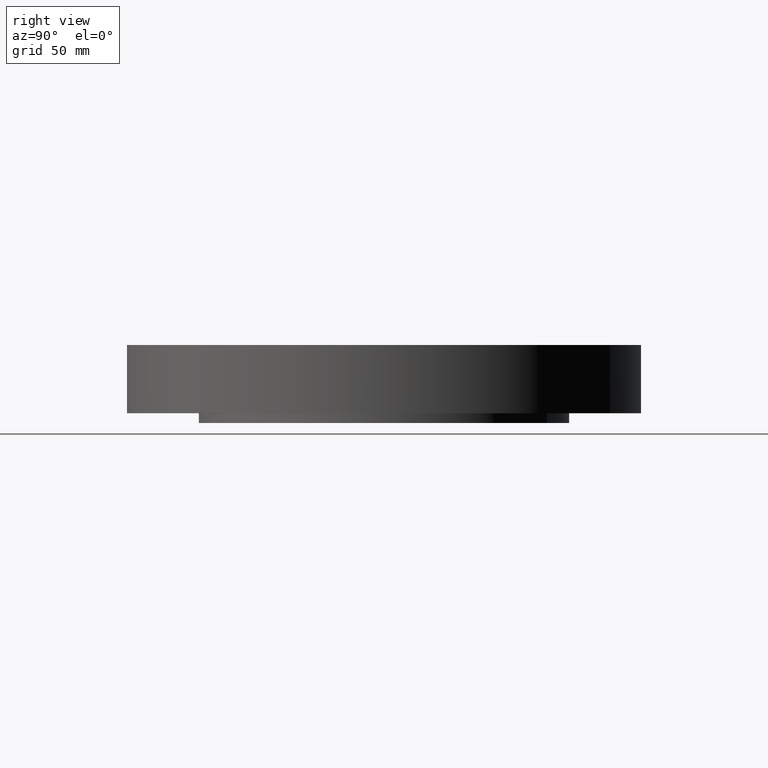
[diagram: clean part render]
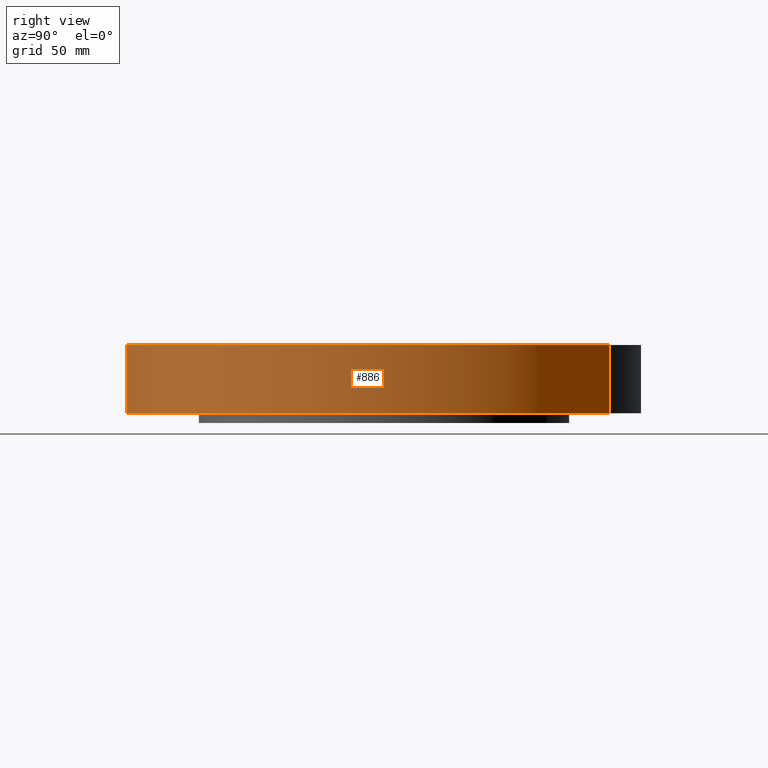
[diagram: same view with one face highlighted and labeled with its STEP entity id]
A machine part, right view. The second image highlights one B-rep face of the part: STEP entity #886.
In plain terms, the highlighted cylindrical surface (partial cylindrical patch) has radius 209.55 mm, axis along (0, 0, -1).
Its self-contained STEP definition (entity closure, byte-faithful):
#739=AXIS2_PLACEMENT_3D('Circle Axis2P3D',#737,#738,$) ;
#859=AXIS2_PLACEMENT_3D('Cylinder Axis2P3D',#856,#857,#858) ;
#870=AXIS2_PLACEMENT_3D('Circle Axis2P3D',#868,#869,$) ;
#732=CARTESIAN_POINT('Vertex',(-3.9552606935,-7.24005613562,6.99353086378E-016)) ;
#734=CARTESIAN_POINT('Vertex',(3.9552606935,7.24005613562,6.99353086378E-016)) ;
#737=CARTESIAN_POINT('Axis2P3D Location',(0.,0.,0.)) ;
#856=CARTESIAN_POINT('Axis2P3D Location',(0.,0.,0.938750000004)) ;
#861=CARTESIAN_POINT('Line Origine',(3.9552606935,7.24005613562,1.095)) ;
#865=CARTESIAN_POINT('Vertex',(3.9552606935,7.24005613562,2.19000000001)) ;
#868=CARTESIAN_POINT('Axis2P3D Location',(0.,0.,2.19000000001)) ;
#872=CARTESIAN_POINT('Vertex',(-3.9552606935,-7.24005613562,2.19000000001)) ;
#875=CARTESIAN_POINT('Line Origine',(-3.9552606935,-7.24005613562,1.095)) ;
#738=DIRECTION('Axis2P3D Direction',(0.,0.,-0.0393700787402)) ;
#857=DIRECTION('Axis2P3D Direction',(0.,0.,-0.0393700787402)) ;
#858=DIRECTION('Axis2P3D XDirection',(-0.0188750212049,-0.0345504945626,0.)) ;
#862=DIRECTION('Vector Direction',(0.,0.,-0.0393700787402)) ;
#869=DIRECTION('Axis2P3D Direction',(0.,0.,-0.0393700787402)) ;
#876=DIRECTION('Vector Direction',(0.,0.,-0.0393700787402)) ;
#863=VECTOR('Line Direction',#862,0.0393700787402) ;
#877=VECTOR('Line Direction',#876,0.0393700787402) ;
#881=ORIENTED_EDGE('',*,*,#741,.F.) ;
#882=ORIENTED_EDGE('',*,*,#867,.T.) ;
#883=ORIENTED_EDGE('',*,*,#874,.T.) ;
#884=ORIENTED_EDGE('',*,*,#879,.F.) ;
#886=ADVANCED_FACE('PartBody',(#885),#860,.T.) ;
#740=CIRCLE('generated circle',#739,8.25000000003) ;
#871=CIRCLE('generated circle',#870,8.25000000003) ;
#860=CYLINDRICAL_SURFACE('generated cylinder',#859,8.25000000003) ;
#741=EDGE_CURVE('',#735,#733,#740,.T.) ;
#867=EDGE_CURVE('',#735,#866,#864,.F.) ;
#874=EDGE_CURVE('',#866,#873,#871,.T.) ;
#879=EDGE_CURVE('',#733,#873,#878,.F.) ;
#880=EDGE_LOOP('',(#881,#882,#883,#884)) ;
#885=FACE_OUTER_BOUND('',#880,.T.) ;
#864=LINE('Line',#861,#863) ;
#878=LINE('Line',#875,#877) ;
#733=VERTEX_POINT('',#732) ;
#735=VERTEX_POINT('',#734) ;
#866=VERTEX_POINT('',#865) ;
#873=VERTEX_POINT('',#872) ;